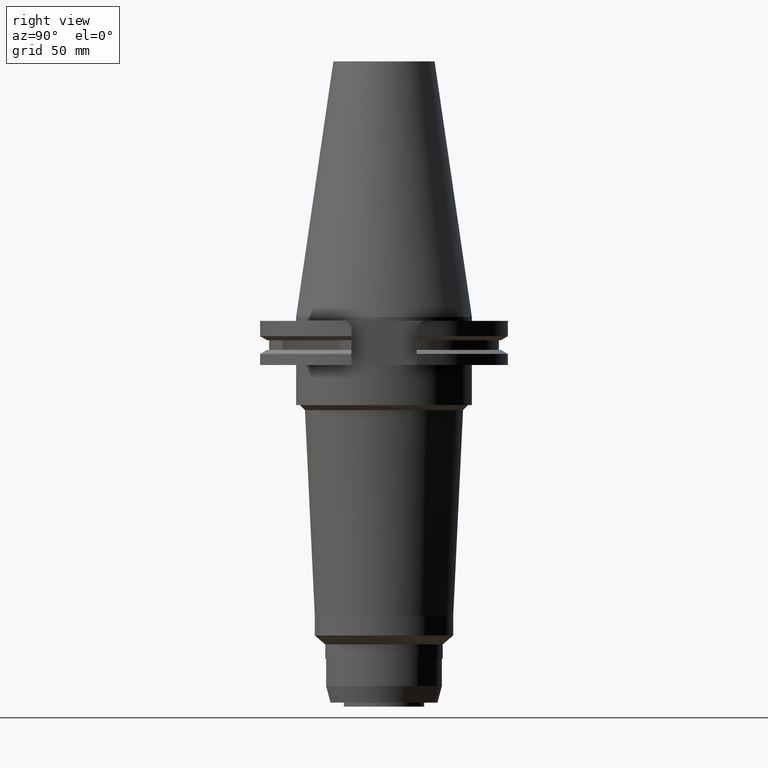
[diagram: clean part render]
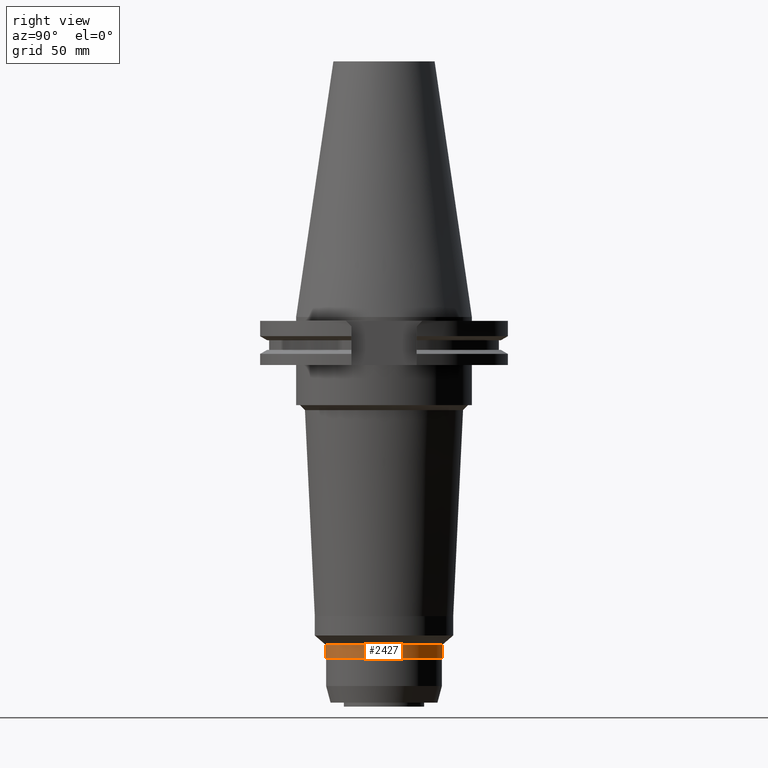
[diagram: same view with one face highlighted and labeled with its STEP entity id]
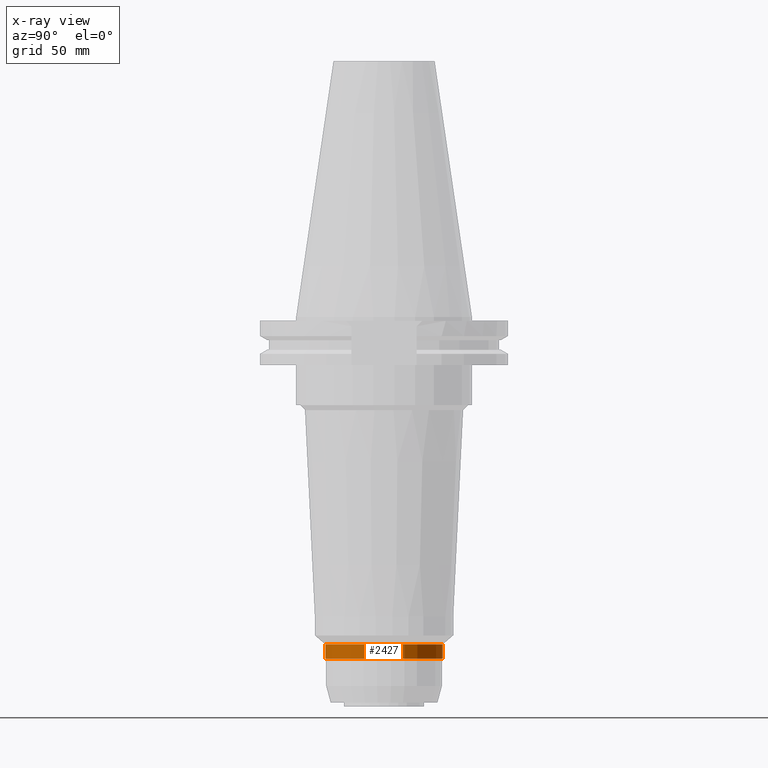
[diagram: x-ray of the same camera — body ghosted, the highlighted face saturated]
A machine part, right view. The second image highlights one B-rep face of the part: STEP entity #2427.
The next image is the same camera in x-ray: the body ghosted, the highlighted face saturated — about 0% of this face is hidden behind the body in this view.
In plain terms, the highlighted cylindrical surface (partial cylindrical patch) has radius 23.35 mm, axis along (0, 0, -1).
Its self-contained STEP definition (entity closure, byte-faithful):
#975=CARTESIAN_POINT('',(0.E0,0.E0,-1.300569801935E2));
#976=DIRECTION('',(0.E0,0.E0,-1.E0));
#977=DIRECTION('',(0.E0,1.E0,0.E0));
#978=AXIS2_PLACEMENT_3D('',#975,#976,#977);
#1014=DIRECTION('',(0.E0,-3.044003251088E-12,-1.E0));
#1015=VECTOR('',#1014,5.643019806520E0);
#1016=CARTESIAN_POINT('',(0.E0,-2.334999999998E1,-1.300569801935E2));
#1017=LINE('',#1016,#1015);
#1021=DIRECTION('',(0.E0,3.045262404449E-12,-1.E0));
#1022=VECTOR('',#1021,5.643019806520E0);
#1023=CARTESIAN_POINT('',(0.E0,2.334999999998E1,-1.300569801935E2));
#1024=LINE('',#1023,#1022);
#1028=CARTESIAN_POINT('',(0.E0,2.625887666732E-14,-1.357E2));
#1029=DIRECTION('',(0.E0,0.E0,1.E0));
#1030=DIRECTION('',(0.E0,-1.E0,0.E0));
#1031=AXIS2_PLACEMENT_3D('',#1028,#1029,#1030);
#1478=CARTESIAN_POINT('',(0.E0,-2.335E1,-1.357E2));
#1479=CARTESIAN_POINT('',(0.E0,2.335E1,-1.357E2));
#1480=VERTEX_POINT('',#1478);
#1481=VERTEX_POINT('',#1479);
#1482=CARTESIAN_POINT('',(0.E0,2.334999999998E1,-1.300569801935E2));
#1483=VERTEX_POINT('',#1482);
#1484=CARTESIAN_POINT('',(0.E0,-2.334999999998E1,-1.300569801935E2));
#1485=VERTEX_POINT('',#1484);
#2415=CARTESIAN_POINT('',(0.E0,2.625887666732E-14,1.1442E2));
#2416=DIRECTION('',(0.E0,0.E0,-1.E0));
#2417=DIRECTION('',(0.E0,-1.E0,0.E0));
#2418=AXIS2_PLACEMENT_3D('',#2415,#2416,#2417);
#2419=CYLINDRICAL_SURFACE('',#2418,2.335E1);
#2420=ORIENTED_EDGE('',*,*,#2405,.T.);
#2422=ORIENTED_EDGE('',*,*,#2421,.F.);
#2423=ORIENTED_EDGE('',*,*,#2408,.F.);
#2424=ORIENTED_EDGE('',*,*,#2379,.F.);
#2425=EDGE_LOOP('',(#2420,#2422,#2423,#2424));
#2426=FACE_OUTER_BOUND('',#2425,.F.);
#979=CIRCLE('',#978,2.334999999997E1);
#1032=CIRCLE('',#1031,2.335E1);
#2379=EDGE_CURVE('',#1483,#1485,#979,.T.);
#2405=EDGE_CURVE('',#1483,#1481,#1024,.T.);
#2408=EDGE_CURVE('',#1485,#1480,#1017,.T.);
#2421=EDGE_CURVE('',#1480,#1481,#1032,.T.);
#2427=ADVANCED_FACE('',(#2426),#2419,.T.);